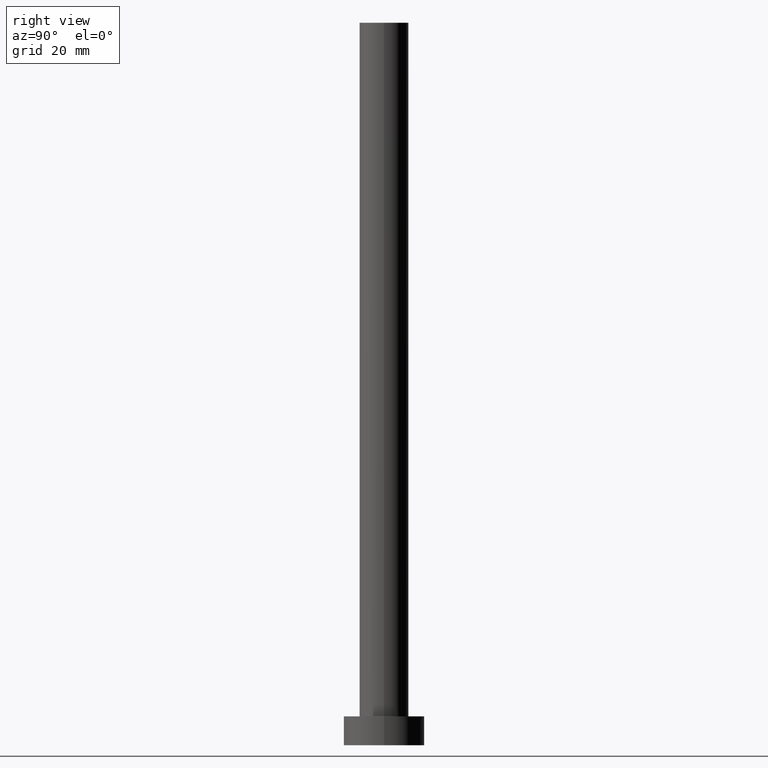
[diagram: clean part render]
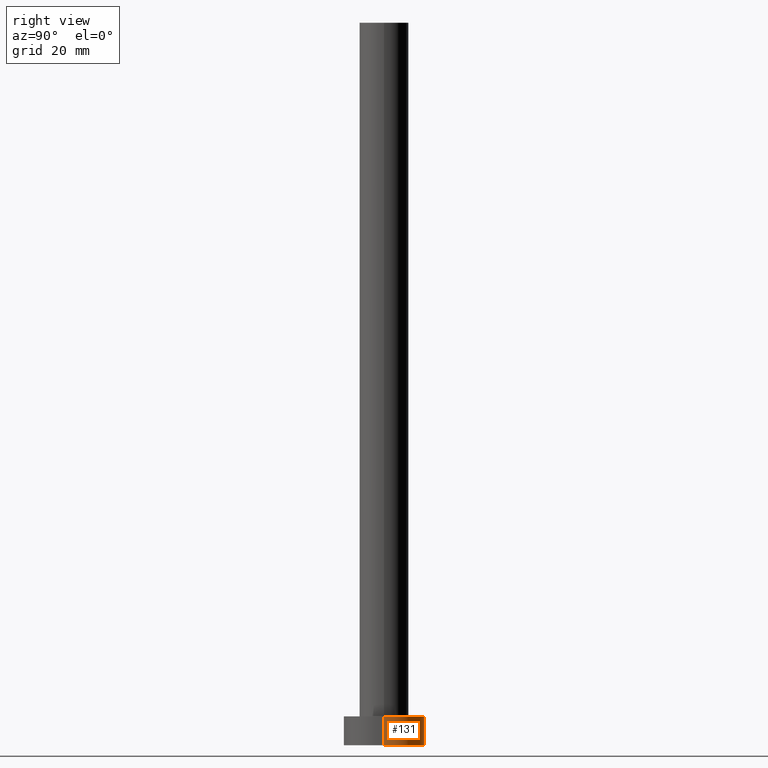
[diagram: same view with one face highlighted and labeled with its STEP entity id]
A machine part, right view. The second image highlights one B-rep face of the part: STEP entity #131.
In plain terms, the highlighted cylindrical surface (partial cylindrical patch) has radius 7 mm, axis along (-0, -0, -1).
Its self-contained STEP definition (entity closure, byte-faithful):
#3 = CIRCLE ( 'NONE', #236, 7.000000000000000000 ) ;
#5 = EDGE_CURVE ( 'NONE', #249, #72, #208, .T. ) ;
#12 = AXIS2_PLACEMENT_3D ( 'NONE', #141, #39, #255 ) ;
#14 = ORIENTED_EDGE ( 'NONE', *, *, #130, .F. ) ;
#20 = VECTOR ( 'NONE', #59, 1000.000000000000000 ) ;
#23 = VERTEX_POINT ( 'NONE', #173 ) ;
#28 = CARTESIAN_POINT ( 'NONE',  ( 0.000000000000000000, 0.000000000000000000, 0.000000000000000000 ) ) ;
#35 = CARTESIAN_POINT ( 'NONE',  ( 7.000000000000000000, 8.572527594031473190E-16, 5.000000000000000000 ) ) ;
#39 = DIRECTION ( 'NONE',  ( -0.000000000000000000, -0.000000000000000000, -1.000000000000000000 ) ) ;
#40 = DIRECTION ( 'NONE',  ( -0.000000000000000000, -0.000000000000000000, -1.000000000000000000 ) ) ;
#56 = ORIENTED_EDGE ( 'NONE', *, *, #101, .T. ) ;
#59 = DIRECTION ( 'NONE',  ( -0.000000000000000000, -0.000000000000000000, -1.000000000000000000 ) ) ;
#72 = VERTEX_POINT ( 'NONE', #88 ) ;
#77 = DIRECTION ( 'NONE',  ( 1.000000000000000000, 0.000000000000000000, 0.000000000000000000 ) ) ;
#88 = CARTESIAN_POINT ( 'NONE',  ( -7.000000000000000000, 0.000000000000000000, 0.000000000000000000 ) ) ;
#101 = EDGE_CURVE ( 'NONE', #138, #249, #124, .T. ) ;
#104 = ORIENTED_EDGE ( 'NONE', *, *, #5, .T. ) ;
#109 = ORIENTED_EDGE ( 'NONE', *, *, #168, .F. ) ;
#117 = AXIS2_PLACEMENT_3D ( 'NONE', #28, #230, #252 ) ;
#122 = LINE ( 'NONE', #217, #128 ) ;
#124 = LINE ( 'NONE', #35, #20 ) ;
#128 = VECTOR ( 'NONE', #40, 1000.000000000000000 ) ;
#130 = EDGE_CURVE ( 'NONE', #138, #23, #3, .T. ) ;
#131 = ADVANCED_FACE ( 'NONE', ( #219 ), #183, .T. ) ;
#138 = VERTEX_POINT ( 'NONE', #164 ) ;
#141 = CARTESIAN_POINT ( 'NONE',  ( 0.000000000000000000, 0.000000000000000000, 5.000000000000000000 ) ) ;
#147 = CARTESIAN_POINT ( 'NONE',  ( 0.000000000000000000, 0.000000000000000000, 5.000000000000000000 ) ) ;
#149 = EDGE_LOOP ( 'NONE', ( #14, #56, #104, #109 ) ) ;
#164 = CARTESIAN_POINT ( 'NONE',  ( 7.000000000000000000, 8.572527594031473190E-16, 5.000000000000000000 ) ) ;
#168 = EDGE_CURVE ( 'NONE', #23, #72, #122, .T. ) ;
#173 = CARTESIAN_POINT ( 'NONE',  ( -7.000000000000000000, 0.000000000000000000, 5.000000000000000000 ) ) ;
#182 = CARTESIAN_POINT ( 'NONE',  ( 7.000000000000000000, 8.572527594031473190E-16, 0.000000000000000000 ) ) ;
#183 = CYLINDRICAL_SURFACE ( 'NONE', #12, 7.000000000000000000 ) ;
#208 = CIRCLE ( 'NONE', #117, 7.000000000000000000 ) ;
#217 = CARTESIAN_POINT ( 'NONE',  ( -7.000000000000000000, 0.000000000000000000, 5.000000000000000000 ) ) ;
#219 = FACE_OUTER_BOUND ( 'NONE', #149, .T. ) ;
#230 = DIRECTION ( 'NONE',  ( 0.000000000000000000, 0.000000000000000000, 1.000000000000000000 ) ) ;
#235 = DIRECTION ( 'NONE',  ( 0.000000000000000000, 0.000000000000000000, 1.000000000000000000 ) ) ;
#236 = AXIS2_PLACEMENT_3D ( 'NONE', #147, #235, #77 ) ;
#249 = VERTEX_POINT ( 'NONE', #182 ) ;
#252 = DIRECTION ( 'NONE',  ( 1.000000000000000000, 0.000000000000000000, 0.000000000000000000 ) ) ;
#255 = DIRECTION ( 'NONE',  ( -1.000000000000000000, 0.000000000000000000, 0.000000000000000000 ) ) ;